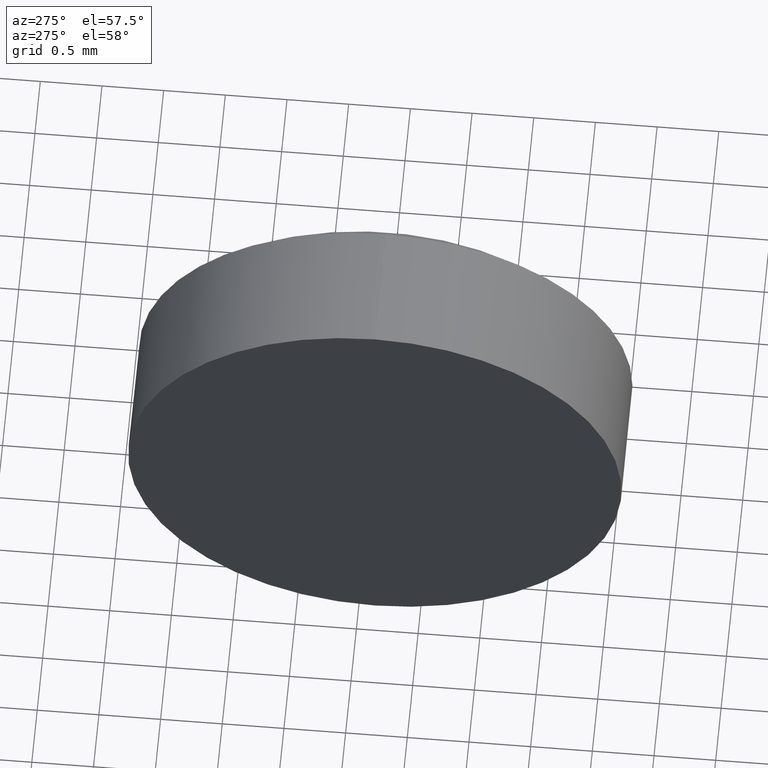
[diagram: clean part render]
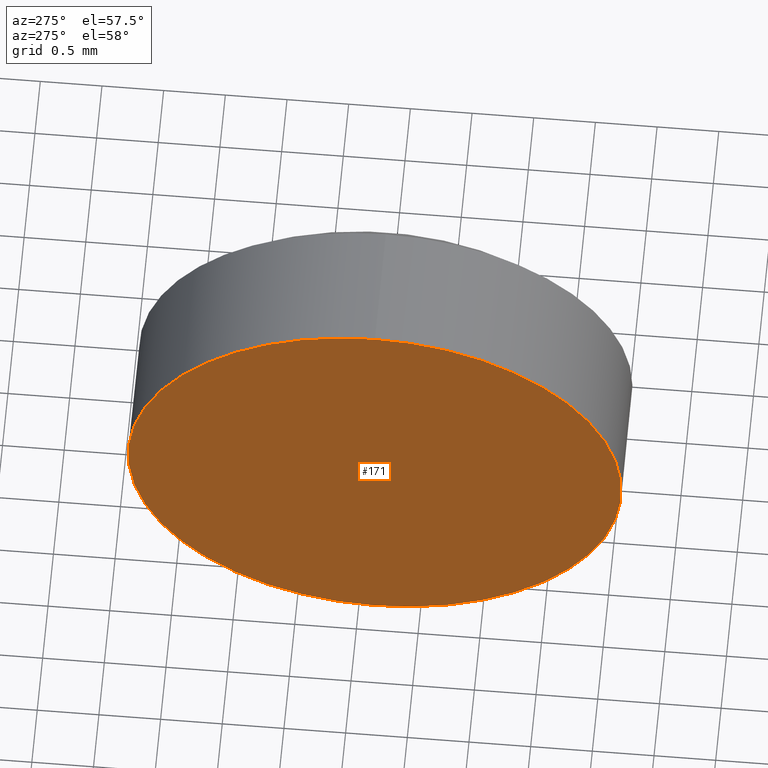
[diagram: same view with one face highlighted and labeled with its STEP entity id]
A machine part, auxiliary view. The second image highlights one B-rep face of the part: STEP entity #171.
In plain terms, the highlighted planar face has unit normal (1, 0, 0).
Its self-contained STEP definition (entity closure, byte-faithful):
#19 = PLANE ( 'NONE',  #20 ) ;
#20 = AXIS2_PLACEMENT_3D ( 'NONE', #121, #22, #125 ) ;
#22 = DIRECTION ( 'NONE',  ( 1.000000000000000000, 0.0000000000000000000, 0.0000000000000000000 ) ) ;
#43 = ORIENTED_EDGE ( 'NONE', *, *, #180, .T. ) ;
#45 = VERTEX_POINT ( 'NONE', #120 ) ;
#46 = CARTESIAN_POINT ( 'NONE',  ( 505.1798674013084000, -76.13347349802080500, -2.000000000000001800 ) ) ;
#76 = CARTESIAN_POINT ( 'NONE',  ( 505.1798674013084000, -76.13347349802080500, 0.0000000000000000000 ) ) ;
#77 = AXIS2_PLACEMENT_3D ( 'NONE', #90, #92, #93 ) ;
#90 = CARTESIAN_POINT ( 'NONE',  ( 505.1798674013084000, -76.13347349802080500, 0.0000000000000000000 ) ) ;
#92 = DIRECTION ( 'NONE',  ( -1.000000000000000000, -0.0000000000000000000, -0.0000000000000000000 ) ) ;
#93 = DIRECTION ( 'NONE',  ( 0.0000000000000000000, 0.0000000000000000000, 1.000000000000000000 ) ) ;
#96 = DIRECTION ( 'NONE',  ( -1.000000000000000000, -0.0000000000000000000, -0.0000000000000000000 ) ) ;
#100 = EDGE_CURVE ( 'NONE', #45, #160, #116, .T. ) ;
#102 = FACE_OUTER_BOUND ( 'NONE', #172, .T. ) ;
#108 = DIRECTION ( 'NONE',  ( 0.0000000000000000000, 0.0000000000000000000, 1.000000000000000000 ) ) ;
#115 = CIRCLE ( 'NONE', #136, 2.000000000000001800 ) ;
#116 = CIRCLE ( 'NONE', #77, 2.000000000000001800 ) ;
#120 = CARTESIAN_POINT ( 'NONE',  ( 505.1798674013084000, -76.13347349802080500, 2.000000000000001800 ) ) ;
#121 = CARTESIAN_POINT ( 'NONE',  ( 505.1798674013084000, -76.13347349802080500, 0.0000000000000000000 ) ) ;
#125 = DIRECTION ( 'NONE',  ( 0.0000000000000000000, 0.0000000000000000000, -1.000000000000000000 ) ) ;
#131 = ORIENTED_EDGE ( 'NONE', *, *, #100, .T. ) ;
#136 = AXIS2_PLACEMENT_3D ( 'NONE', #76, #96, #108 ) ;
#160 = VERTEX_POINT ( 'NONE', #46 ) ;
#171 = ADVANCED_FACE ( 'NONE', ( #102 ), #19, .F. ) ;
#172 = EDGE_LOOP ( 'NONE', ( #131, #43 ) ) ;
#180 = EDGE_CURVE ( 'NONE', #160, #45, #115, .T. ) ;